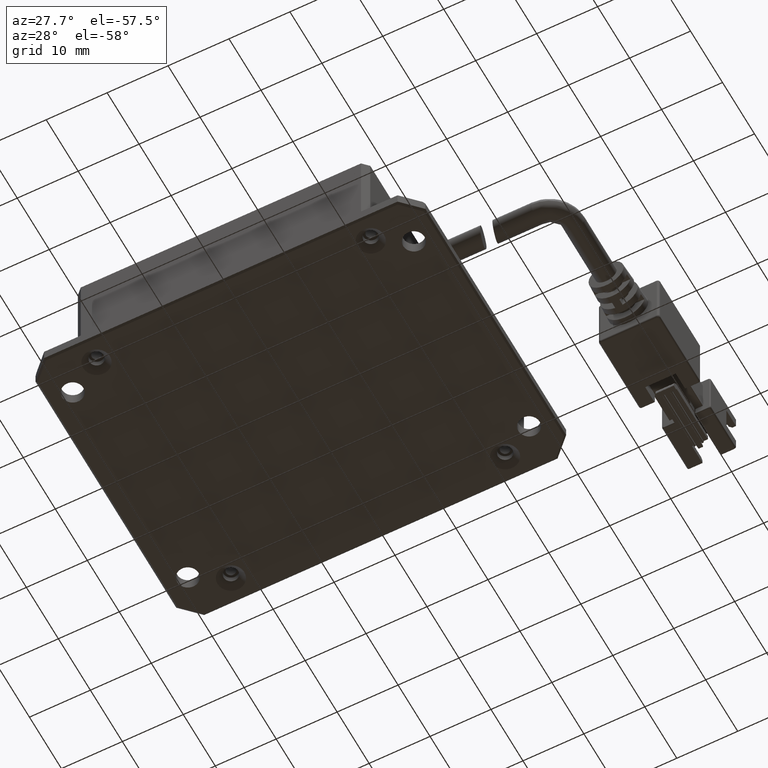
[diagram: clean part render]
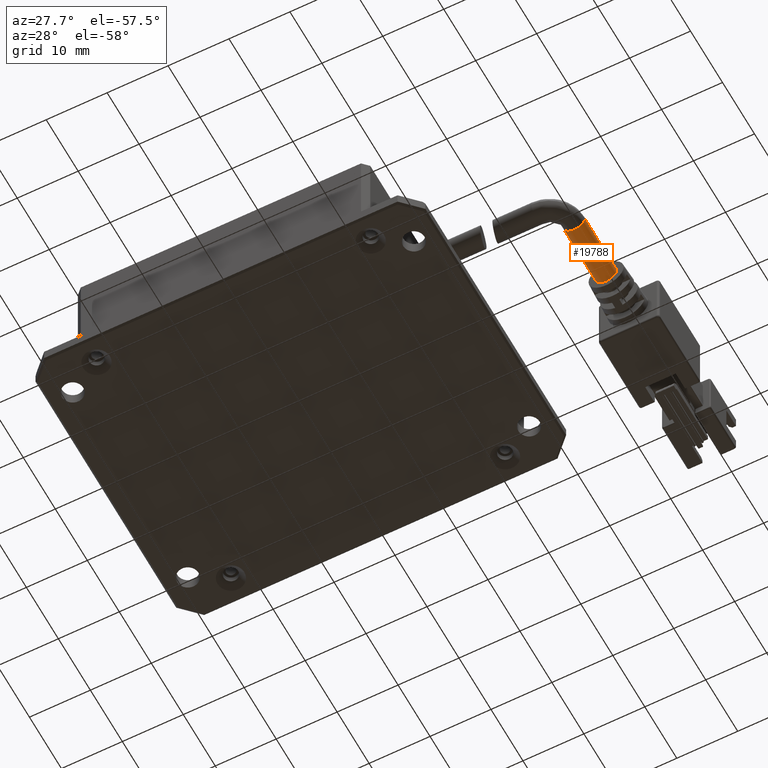
[diagram: same view with one face highlighted and labeled with its STEP entity id]
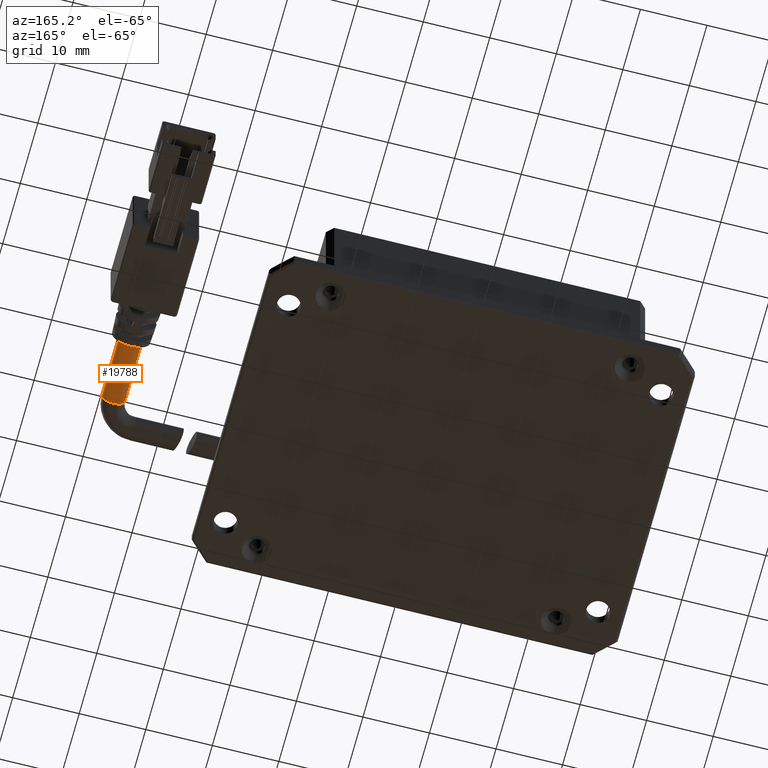
[diagram: same view with one face highlighted and labeled with its STEP entity id]
A machine part, auxiliary view. The second image highlights one B-rep face of the part: STEP entity #19788.
A second angle (auxiliary view) of the same face is appended — the face is thin or edge-on in the first view.
In plain terms, the highlighted cylindrical surface (edge-blend (fillet) strip) has radius 1.75 mm, axis along (-0, 1, -0).
Its self-contained STEP definition (entity closure, byte-faithful):
#1024 = CIRCLE ( 'NONE', #3793, 1.750000000000001600 ) ;
#2010 = CARTESIAN_POINT ( 'NONE',  ( 47.09316533027874400, -0.7090492554409685300, 4.999999999983692200 ) ) ;
#2038 = VERTEX_POINT ( 'NONE', #2593 ) ;
#2593 = CARTESIAN_POINT ( 'NONE',  ( 48.84316533027874400, 6.290950744559033600, 4.999999999983692200 ) ) ;
#2725 = AXIS2_PLACEMENT_3D ( 'NONE', #2010, #19478, #6892 ) ;
#2917 = DIRECTION ( 'NONE',  ( -3.081487911019577400E-033, 1.000000000000000000, -2.672764710092188000E-049 ) ) ;
#3281 = ORIENTED_EDGE ( 'NONE', *, *, #6512, .F. ) ;
#3437 = EDGE_CURVE ( 'NONE', #9519, #14836, #5421, .T. ) ;
#3577 = CARTESIAN_POINT ( 'NONE',  ( 47.09316533027874400, -3.709049255440967800, 4.999999999983692200 ) ) ;
#3793 = AXIS2_PLACEMENT_3D ( 'NONE', #12382, #2917, #13962 ) ;
#4636 = CARTESIAN_POINT ( 'NONE',  ( 45.34316533027873700, 6.290950744559033600, 4.999999999983692200 ) ) ;
#5194 = DIRECTION ( 'NONE',  ( 1.000000000000000000, 0.0000000000000000000, 0.0000000000000000000 ) ) ;
#5396 = LINE ( 'NONE', #7851, #17494 ) ;
#5421 = LINE ( 'NONE', #8609, #8622 ) ;
#6512 = EDGE_CURVE ( 'NONE', #2038, #14836, #1024, .T. ) ;
#6892 = DIRECTION ( 'NONE',  ( 1.000000000000000000, 0.0000000000000000000, 0.0000000000000000000 ) ) ;
#7851 = CARTESIAN_POINT ( 'NONE',  ( 48.84316533027874400, -0.7090492554409685300, 4.999999999983692200 ) ) ;
#8609 = CARTESIAN_POINT ( 'NONE',  ( 45.34316533027873700, -0.7090492554409685300, 4.999999999983692200 ) ) ;
#8622 = VECTOR ( 'NONE', #10181, 1000.000000000000000 ) ;
#9433 = CYLINDRICAL_SURFACE ( 'NONE', #2725, 1.750000000000001600 ) ;
#9519 = VERTEX_POINT ( 'NONE', #19930 ) ;
#10181 = DIRECTION ( 'NONE',  ( -3.081487911019577400E-033, 1.000000000000000000, -2.672764710092188000E-049 ) ) ;
#11812 = ORIENTED_EDGE ( 'NONE', *, *, #16667, .T. ) ;
#12382 = CARTESIAN_POINT ( 'NONE',  ( 47.09316533027874400, 6.290950744559033600, 4.999999999983692200 ) ) ;
#13414 = CIRCLE ( 'NONE', #16965, 1.750000000000001600 ) ;
#13419 = ORIENTED_EDGE ( 'NONE', *, *, #3437, .T. ) ;
#13962 = DIRECTION ( 'NONE',  ( 1.000000000000000000, 0.0000000000000000000, 0.0000000000000000000 ) ) ;
#14620 = DIRECTION ( 'NONE',  ( -3.081487911019577400E-033, 1.000000000000000000, -2.672764710092188000E-049 ) ) ;
#14836 = VERTEX_POINT ( 'NONE', #4636 ) ;
#15099 = FACE_OUTER_BOUND ( 'NONE', #16191, .T. ) ;
#16191 = EDGE_LOOP ( 'NONE', ( #11812, #13419, #3281, #18143 ) ) ;
#16234 = CARTESIAN_POINT ( 'NONE',  ( 48.84316533027874400, -3.709049255440967800, 4.999999999983692200 ) ) ;
#16667 = EDGE_CURVE ( 'NONE', #17907, #9519, #13414, .T. ) ;
#16965 = AXIS2_PLACEMENT_3D ( 'NONE', #3577, #14620, #5194 ) ;
#17494 = VECTOR ( 'NONE', #18901, 1000.000000000000000 ) ;
#17628 = EDGE_CURVE ( 'NONE', #17907, #2038, #5396, .T. ) ;
#17907 = VERTEX_POINT ( 'NONE', #16234 ) ;
#18143 = ORIENTED_EDGE ( 'NONE', *, *, #17628, .F. ) ;
#18901 = DIRECTION ( 'NONE',  ( -3.081487911019577400E-033, 1.000000000000000000, -2.672764710092188000E-049 ) ) ;
#19478 = DIRECTION ( 'NONE',  ( -3.081487911019577400E-033, 1.000000000000000000, -2.672764710092188000E-049 ) ) ;
#19788 = ADVANCED_FACE ( 'NONE', ( #15099 ), #9433, .T. ) ;
#19930 = CARTESIAN_POINT ( 'NONE',  ( 45.34316533027873700, -3.709049255440967800, 4.999999999983692200 ) ) ;